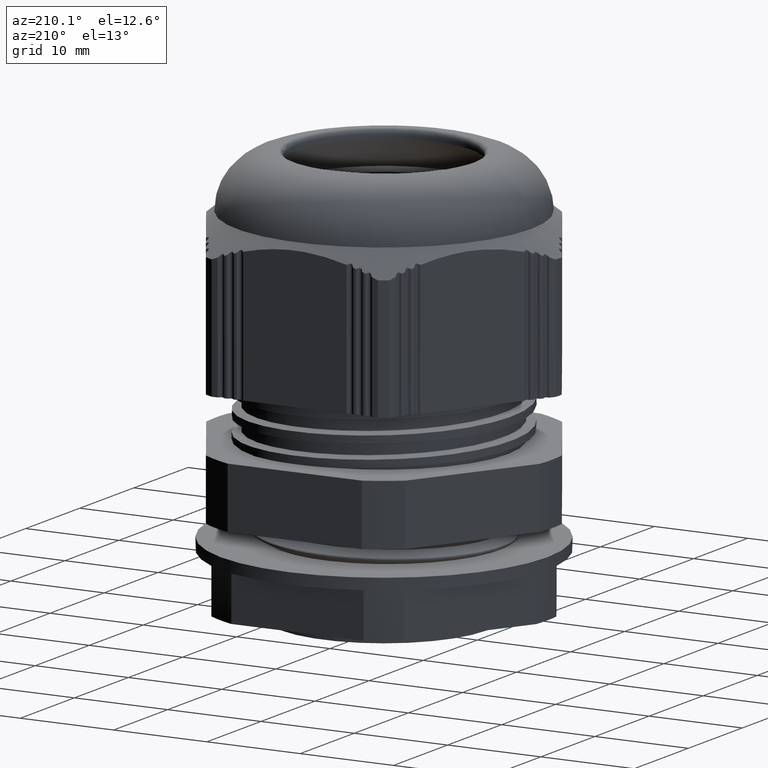
[diagram: clean part render]
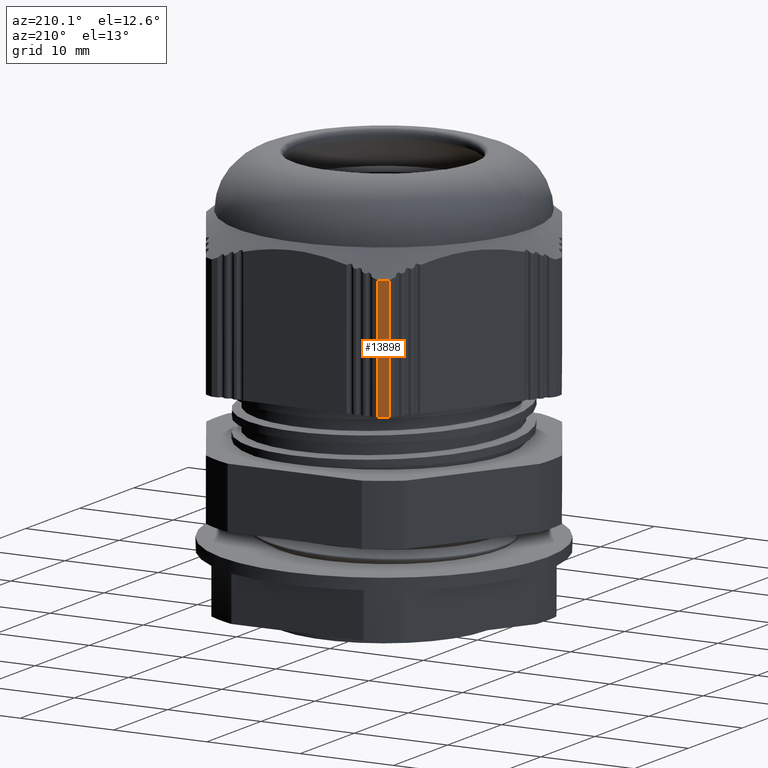
[diagram: same view with one face highlighted and labeled with its STEP entity id]
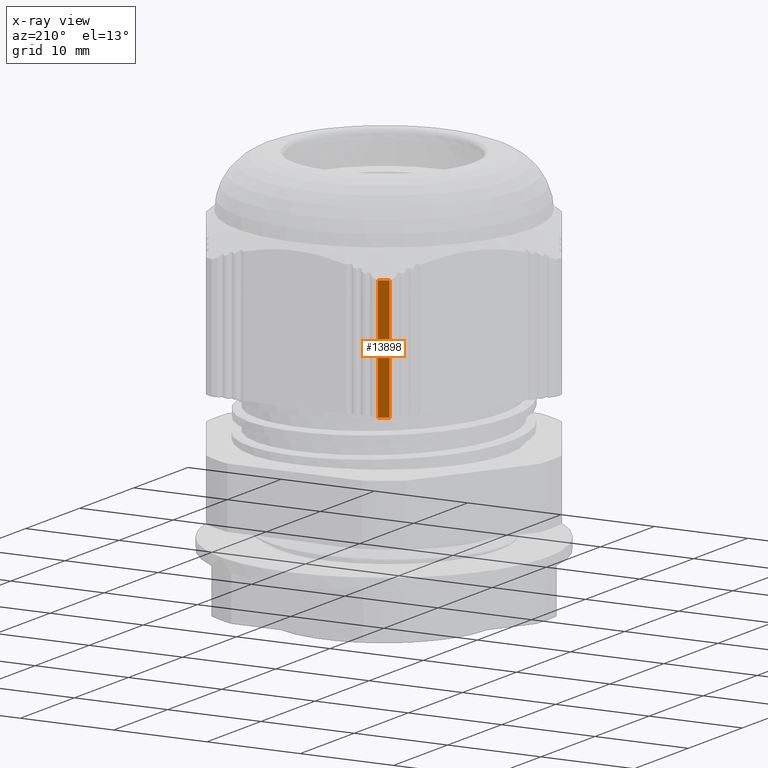
[diagram: x-ray of the same camera — body ghosted, the highlighted face saturated]
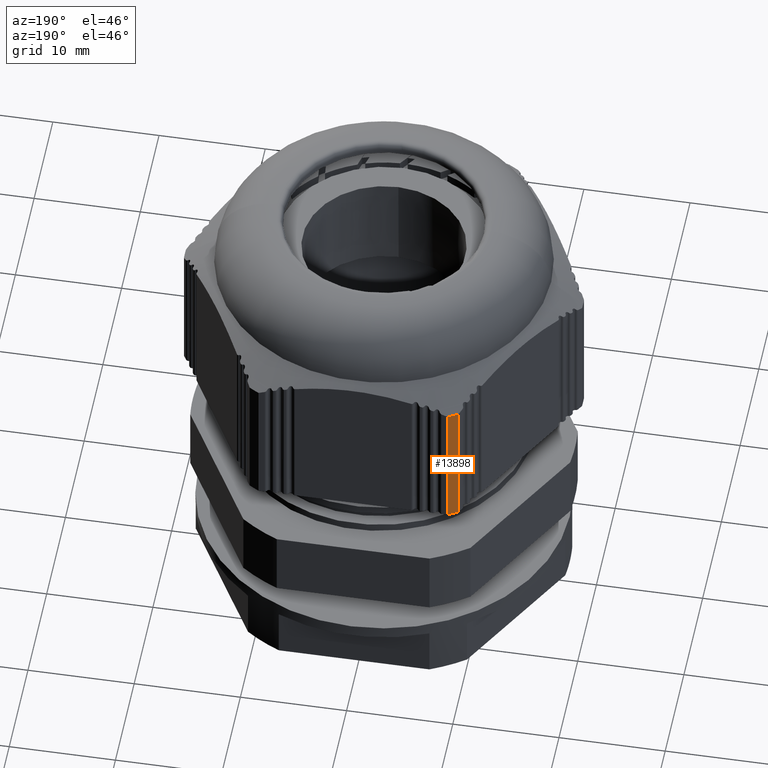
[diagram: same view with one face highlighted and labeled with its STEP entity id]
A machine part, auxiliary view. The second image highlights one B-rep face of the part: STEP entity #13898.
The next image is the same camera in x-ray: the body ghosted, the highlighted face saturated — about 0% of this face is hidden behind the body in this view.
A second angle (auxiliary view) of the same face is appended — the face is thin or edge-on in the first view.
In plain terms, the highlighted cylindrical surface (partial cylindrical patch) has radius 18.75 mm, axis along (-0, -0, -1).
Its self-contained STEP definition (entity closure, byte-faithful):
#1545 = VERTEX_POINT ( 'NONE', #2528 ) ;
#1553 = VERTEX_POINT ( 'NONE', #2585 ) ;
#2385 = DIRECTION ( 'NONE',  ( -0.0000000000000000000, -0.0000000000000000000, -1.000000000000000000 ) ) ;
#2390 = DIRECTION ( 'NONE',  ( -1.000000000000000000, 0.0000000000000000000, 0.0000000000000000000 ) ) ;
#2401 = CARTESIAN_POINT ( 'NONE',  ( 0.0000000000000000000, 0.0000000000000000000, 36.21844550262502300 ) ) ;
#2528 = CARTESIAN_POINT ( 'NONE',  ( -9.836540879804028100, 15.96261142545117600, 36.21844550262502300 ) ) ;
#2585 = CARTESIAN_POINT ( 'NONE',  ( -8.905756565278442900, 16.50000000000000000, 36.21844550262502300 ) ) ;
#2707 = EDGE_CURVE ( 'NONE', #1545, #1553, #13013, .T. ) ;
#3161 = AXIS2_PLACEMENT_3D ( 'NONE', #6458, #6446, #6443 ) ;
#4429 = VECTOR ( 'NONE', #7114, 1000.000000000000000 ) ;
#4513 = VECTOR ( 'NONE', #10484, 1000.000000000000000 ) ;
#4524 = AXIS2_PLACEMENT_3D ( 'NONE', #4981, #4985, #4986 ) ;
#4541 = CIRCLE ( 'NONE', #4524, 18.75000000000000400 ) ;
#4981 = CARTESIAN_POINT ( 'NONE',  ( 0.0000000000000000000, 0.0000000000000000000, 23.17108913028694100 ) ) ;
#4985 = DIRECTION ( 'NONE',  ( 0.0000000000000000000, 0.0000000000000000000, 1.000000000000000000 ) ) ;
#4986 = DIRECTION ( 'NONE',  ( -1.000000000000000000, 0.0000000000000000000, 0.0000000000000000000 ) ) ;
#5786 = CARTESIAN_POINT ( 'NONE',  ( -8.905756565278460700, 16.49999999999999300, 23.17108913028694100 ) ) ;
#5807 = CARTESIAN_POINT ( 'NONE',  ( -9.836540879804026400, 15.96261142545117600, 23.17108913028694100 ) ) ;
#6379 = FACE_OUTER_BOUND ( 'NONE', #10590, .T. ) ;
#6433 = CYLINDRICAL_SURFACE ( 'NONE', #3161, 18.75000000000000400 ) ;
#6443 = DIRECTION ( 'NONE',  ( -1.000000000000000000, 0.0000000000000000000, 0.0000000000000000000 ) ) ;
#6446 = DIRECTION ( 'NONE',  ( -0.0000000000000000000, -0.0000000000000000000, -1.000000000000000000 ) ) ;
#6458 = CARTESIAN_POINT ( 'NONE',  ( 0.0000000000000000000, 0.0000000000000000000, 51.54746817551181700 ) ) ;
#7114 = DIRECTION ( 'NONE',  ( -0.0000000000000000000, 0.0000000000000000000, 1.000000000000000000 ) ) ;
#7204 = CARTESIAN_POINT ( 'NONE',  ( -9.836540879804028100, 15.96261142545117200, 38.67108913028693700 ) ) ;
#7229 = LINE ( 'NONE', #7204, #4429 ) ;
#10461 = CARTESIAN_POINT ( 'NONE',  ( -8.905756565278442900, 16.50000000000000000, 38.67108913028693700 ) ) ;
#10480 = LINE ( 'NONE', #10461, #4513 ) ;
#10484 = DIRECTION ( 'NONE',  ( 0.0000000000000000000, -0.0000000000000000000, -1.000000000000000000 ) ) ;
#10590 = EDGE_LOOP ( 'NONE', ( #10833, #10807, #10798, #10823 ) ) ;
#10798 = ORIENTED_EDGE ( 'NONE', *, *, #13308, .T. ) ;
#10807 = ORIENTED_EDGE ( 'NONE', *, *, #13332, .T. ) ;
#10823 = ORIENTED_EDGE ( 'NONE', *, *, #2707, .T. ) ;
#10833 = ORIENTED_EDGE ( 'NONE', *, *, #13356, .T. ) ;
#11305 = VERTEX_POINT ( 'NONE', #5786 ) ;
#11309 = VERTEX_POINT ( 'NONE', #5807 ) ;
#13013 = CIRCLE ( 'NONE', #13032, 18.75000000000000400 ) ;
#13032 = AXIS2_PLACEMENT_3D ( 'NONE', #2401, #2385, #2390 ) ;
#13308 = EDGE_CURVE ( 'NONE', #11309, #1545, #7229, .T. ) ;
#13332 = EDGE_CURVE ( 'NONE', #11305, #11309, #4541, .T. ) ;
#13356 = EDGE_CURVE ( 'NONE', #1553, #11305, #10480, .T. ) ;
#13898 = ADVANCED_FACE ( 'NONE', ( #6379 ), #6433, .T. ) ;